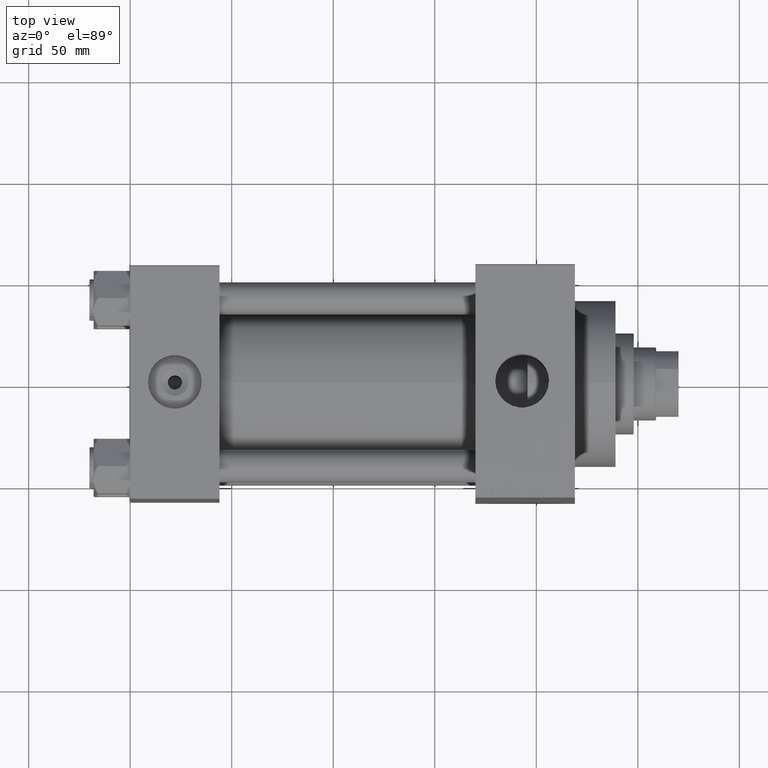
[diagram: clean part render]
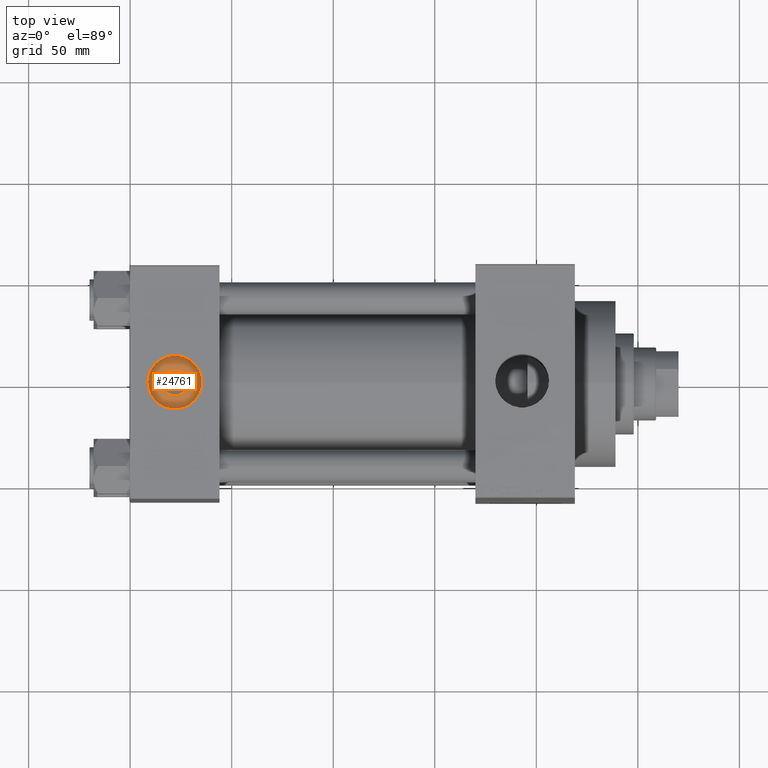
[diagram: same view with one face highlighted and labeled with its STEP entity id]
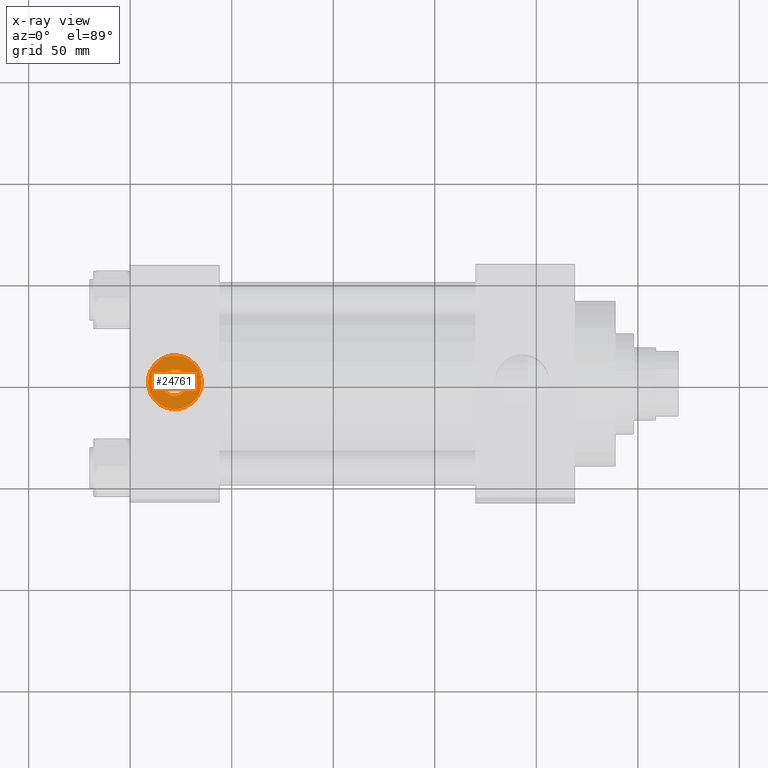
[diagram: x-ray of the same camera — body ghosted, the highlighted face saturated]
A machine part, top view. The second image highlights one B-rep face of the part: STEP entity #24761.
The next image is the same camera in x-ray: the body ghosted, the highlighted face saturated — about 0% of this face is hidden behind the body in this view.
In plain terms, the highlighted planar face has unit normal (0, 0, 1).
Its self-contained STEP definition (entity closure, byte-faithful):
#342 = FACE_BOUND ( 'NONE', #35406, .T. ) ;
#580 = PLANE ( 'NONE',  #10221 ) ;
#815 = FACE_OUTER_BOUND ( 'NONE', #23072, .T. ) ;
#3961 = DIRECTION ( 'NONE',  ( 0.000000000000000000, 0.000000000000000000, 1.000000000000000000 ) ) ;
#7048 = ORIENTED_EDGE ( 'NONE', *, *, #46390, .T. ) ;
#7552 = CARTESIAN_POINT ( 'NONE',  ( 28.64000000000003254, -1.214306433183765124E-14, 46.70000000000000284 ) ) ;
#8687 = CARTESIAN_POINT ( 'NONE',  ( 22.00000000000000000, -1.214306433183765124E-14, 46.70000000000000284 ) ) ;
#9163 = DIRECTION ( 'NONE',  ( 1.000000000000000000, 0.000000000000000000, 0.000000000000000000 ) ) ;
#10221 = AXIS2_PLACEMENT_3D ( 'NONE', #25895, #3961, #15043 ) ;
#12416 = AXIS2_PLACEMENT_3D ( 'NONE', #14149, #21630, #40427 ) ;
#14149 = CARTESIAN_POINT ( 'NONE',  ( 22.00000000000000000, -1.214306433183765124E-14, 46.70000000000000284 ) ) ;
#14152 = EDGE_CURVE ( 'NONE', #31189, #18097, #44097, .T. ) ;
#14731 = ORIENTED_EDGE ( 'NONE', *, *, #36221, .T. ) ;
#15043 = DIRECTION ( 'NONE',  ( 1.000000000000000000, 0.000000000000000000, -0.000000000000000000 ) ) ;
#17826 = DIRECTION ( 'NONE',  ( 1.000000000000000000, 0.000000000000000000, 0.000000000000000000 ) ) ;
#18017 = CARTESIAN_POINT ( 'NONE',  ( 35.21999999999999886, -1.214306433183765124E-14, 46.70000000000000284 ) ) ;
#18086 = EDGE_CURVE ( 'NONE', #18097, #31189, #23195, .T. ) ;
#18097 = VERTEX_POINT ( 'NONE', #18017 ) ;
#18714 = AXIS2_PLACEMENT_3D ( 'NONE', #8687, #34732, #9163 ) ;
#21204 = DIRECTION ( 'NONE',  ( -0.000000000000000000, -0.000000000000000000, -1.000000000000000000 ) ) ;
#21630 = DIRECTION ( 'NONE',  ( 0.000000000000000000, 0.000000000000000000, 1.000000000000000000 ) ) ;
#22344 = CARTESIAN_POINT ( 'NONE',  ( 8.779999999999994031, -1.052408126336485088E-14, 46.70000000000000284 ) ) ;
#23072 = EDGE_LOOP ( 'NONE', ( #43097, #41444 ) ) ;
#23195 = CIRCLE ( 'NONE', #12416, 13.22000000000000242 ) ;
#24263 = AXIS2_PLACEMENT_3D ( 'NONE', #35431, #21204, #17826 ) ;
#24761 = ADVANCED_FACE ( 'NONE', ( #342, #815 ), #580, .T. ) ;
#25895 = CARTESIAN_POINT ( 'NONE',  ( 22.00000000000000000, -1.214306433183765124E-14, 46.70000000000000284 ) ) ;
#27102 = DIRECTION ( 'NONE',  ( -0.000000000000000000, -0.000000000000000000, -1.000000000000000000 ) ) ;
#29086 = CARTESIAN_POINT ( 'NONE',  ( 15.35999999999996390, -1.132989885720380361E-14, 46.70000000000000284 ) ) ;
#30485 = CARTESIAN_POINT ( 'NONE',  ( 22.00000000000000000, -1.214306433183765124E-14, 46.70000000000000284 ) ) ;
#31189 = VERTEX_POINT ( 'NONE', #22344 ) ;
#34732 = DIRECTION ( 'NONE',  ( 0.000000000000000000, 0.000000000000000000, 1.000000000000000000 ) ) ;
#35406 = EDGE_LOOP ( 'NONE', ( #7048, #14731 ) ) ;
#35431 = CARTESIAN_POINT ( 'NONE',  ( 22.00000000000000000, -1.214306433183765124E-14, 46.70000000000000284 ) ) ;
#36221 = EDGE_CURVE ( 'NONE', #37179, #37477, #46008, .T. ) ;
#37179 = VERTEX_POINT ( 'NONE', #29086 ) ;
#37395 = CIRCLE ( 'NONE', #24263, 6.640000000000034319 ) ;
#37477 = VERTEX_POINT ( 'NONE', #7552 ) ;
#37967 = DIRECTION ( 'NONE',  ( 1.000000000000000000, 0.000000000000000000, 0.000000000000000000 ) ) ;
#40427 = DIRECTION ( 'NONE',  ( 1.000000000000000000, 0.000000000000000000, 0.000000000000000000 ) ) ;
#40612 = AXIS2_PLACEMENT_3D ( 'NONE', #30485, #27102, #37967 ) ;
#41444 = ORIENTED_EDGE ( 'NONE', *, *, #14152, .T. ) ;
#43097 = ORIENTED_EDGE ( 'NONE', *, *, #18086, .T. ) ;
#44097 = CIRCLE ( 'NONE', #18714, 13.22000000000000242 ) ;
#46008 = CIRCLE ( 'NONE', #40612, 6.640000000000034319 ) ;
#46390 = EDGE_CURVE ( 'NONE', #37477, #37179, #37395, .T. ) ;